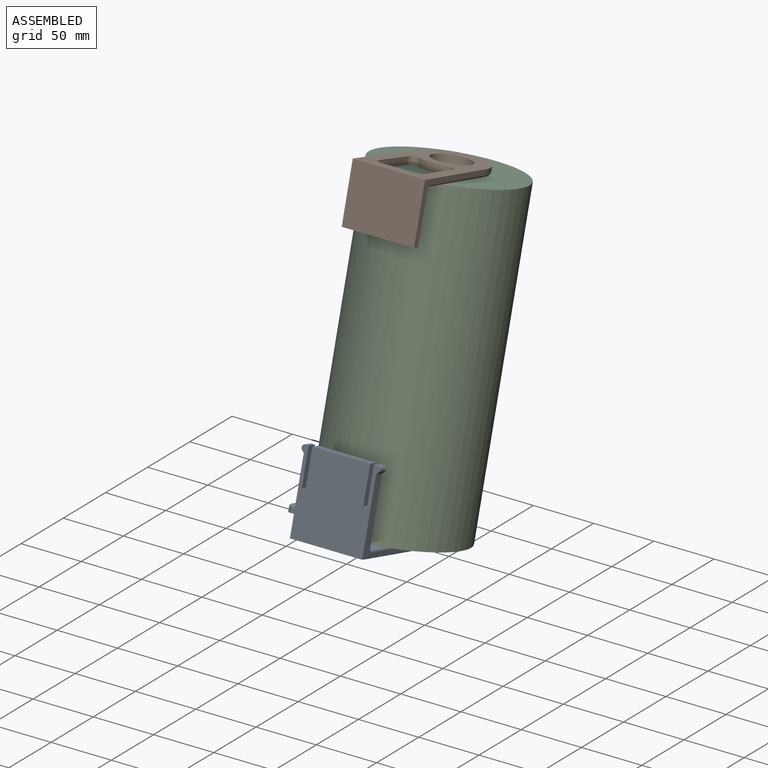
[diagram: assembled view]
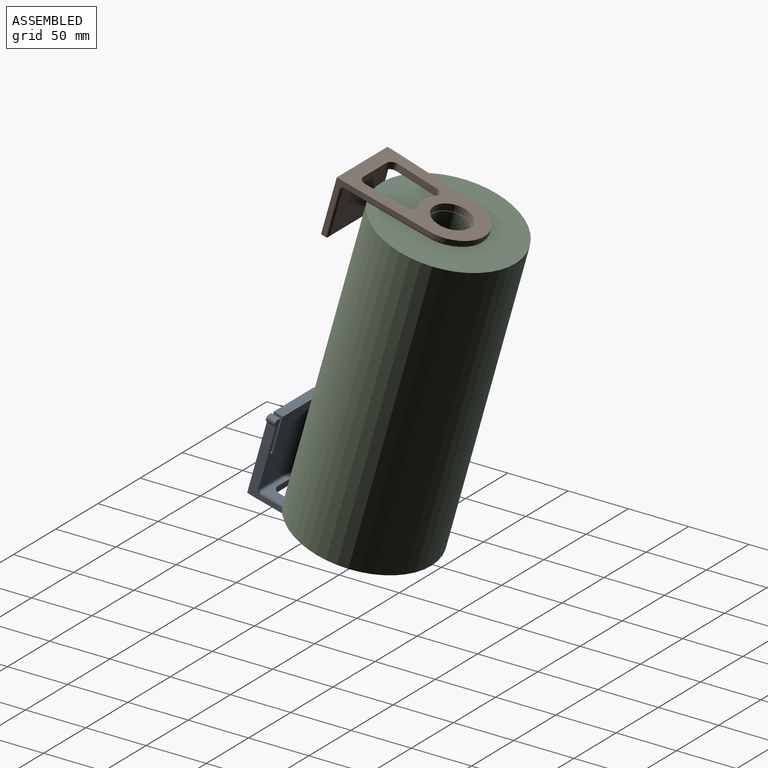
[diagram: assembled view, second angle]
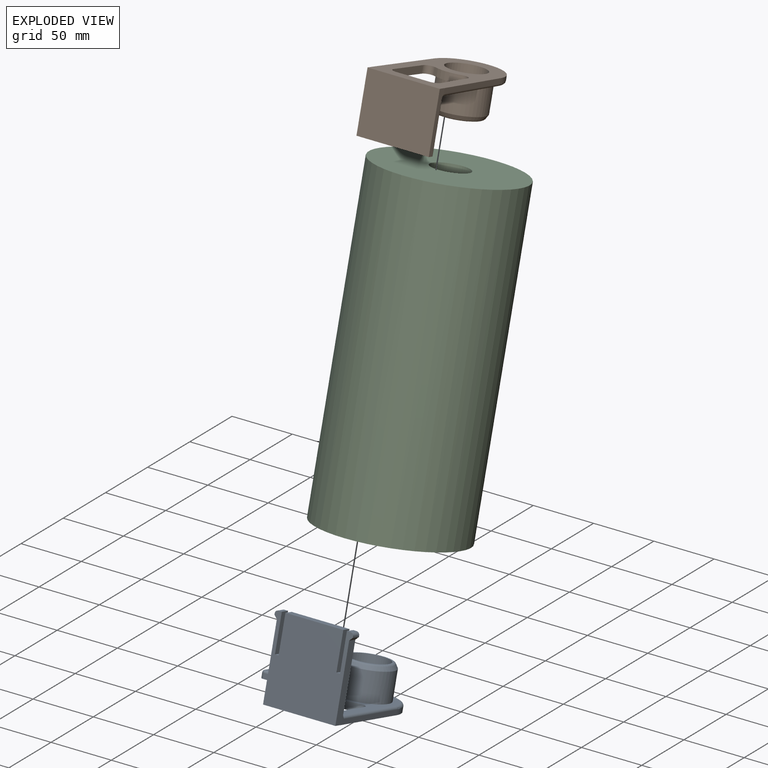
[diagram: exploded view]
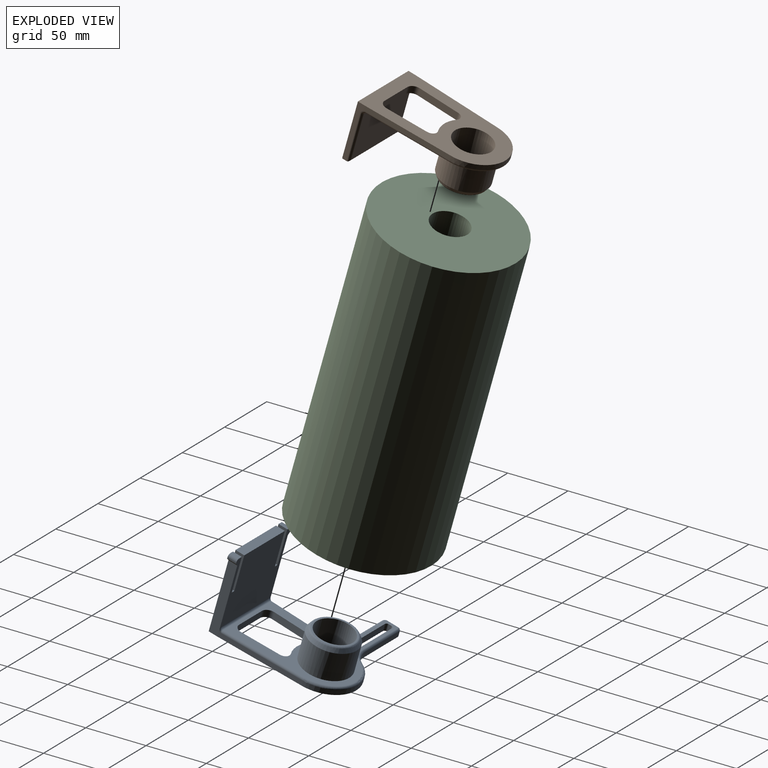
[diagram: exploded view, second angle]
ASSEMBLY  parts=3 mates=2
PART A: 66 faces, bbox 66.6x114.4x108 mm
  f0: torus R=16.54mm, axis (1,0,0), area 230.2mm2, adj f1,f18
  f1: cone r=18.27mm half-angle=30deg, axis (-1,0,0), area 416.5mm2, adj f0,f26
  f2: torus R=4mm, axis (0,0,1), area 8.5mm2, adj f25,f28,f29,f37
  f3: cylinder r=1.5mm len=7.6mm, axis (0,0,1), area 9mm2, adj f4,f29,f30,f39
  f4: plane 7.6x0.38mm, normal (0,-1,0), area 2.9mm2, adj f3,f5,f29,f39
  f5: cylinder r=2.5mm len=7.6mm, axis (0,0,1), area 29.8mm2, adj f4,f6,f29,f39
  f6: plane 7.6x3mm, normal (1,0,0), area 22.8mm2, adj f5,f7,f29,f39
  f7: plane 30x7.6mm, normal (0,1,0), area 228mm2, adj f6,f8,f29,f39
  f8: plane 7.6x3mm, normal (1,0,0), area 22.8mm2, adj f7,f9,f29,f39
  f9: plane 30x7.6mm, normal (0,-1,0), area 228mm2, adj f8,f10,f29,f39
  f10: plane 48x7.6mm, normal (1,0,0), area 364.8mm2, adj f9,f11,f29,f39
  f11: plane 30x7.6mm, normal (0,1,0), area 228mm2, adj f10,f12,f29,f39
  f12: plane 7.6x3mm, normal (1,0,0), area 22.8mm2, adj f11,f13,f29,f39
  f13: plane 30x7.6mm, normal (0,-1,0), area 228mm2, adj f12,f14,f29,f39
  f14: plane 7.6x3mm, normal (1,0,0), area 22.8mm2, adj f13,f15,f29,f39
  f15: cylinder r=2.5mm len=7.6mm, axis (0,0,1), area 29.8mm2, adj f14,f16,f29,f39
  f16: plane 7.6x1mm, normal (0,1,0), area 7.6mm2, adj f15,f17,f29,f39
  f17: plane 7.6x2.5mm, normal (-0.71,0.71,0), area 26.9mm2, adj f16,f29,f38,f39
  f18: plane 33.51x33.07mm, normal (1,0,0), area 104.3mm2, adj f0,f56
  f19: torus R=1mm, axis (-1,0,0), area 11.2mm2, adj f20,f27,f31,f58
  f20: cylinder r=2mm len=9mm, axis (0,0,1), area 28.3mm2, adj f19,f21,f32,f58
  f21: torus R=1mm, axis (-1,0,0), area 11.2mm2, adj f20,f22,f33,f58
  f22: cylinder r=2mm len=40.68mm, axis (0,-1,0), area 127.8mm2, adj f21,f23,f34,f58
  f23: torus R=17mm, axis (-1,0,0), area 50.2mm2, adj f22,f24,f35,f58
  f24: torus R=25.73mm, axis (-1,0,0), area 216.7mm2, adj f23,f25,f36,f58
  f25: cylinder r=2mm len=69.02mm, axis (0,-0.03,1), area 216.6mm2, adj f2,f24,f37,f58
  f26: cylinder r=20mm len=40mm, axis (1,0,0), area 2890.3mm2, adj f1,f58
  f27: cylinder r=2mm len=38.69mm, axis (0,1,0), area 121.5mm2, adj f19,f57,f58,f59
  f28: cylinder r=2mm len=55.87mm, axis (0,-1,0), area 175.5mm2, adj f2,f29,f58,f60
  f29: plane 65x58.57mm, normal (0,0,1), area 3321.8mm2, adj f2,f3,f4,f5,f6,f7,f8,f9
  f30: plane 7.6x2.06mm, normal (-0.71,-0.71,0), area 22.1mm2, adj f3,f29,f39,f61
  f31: cylinder r=3mm len=4mm, axis (-1,0,0), area 18.8mm2, adj f19,f32,f57,f62
  f32: plane 9x4mm, normal (0,-1,0), area 36mm2, adj f20,f31,f33,f62
  f33: cylinder r=3mm len=4mm, axis (-1,0,0), area 18.8mm2, adj f21,f32,f34,f62
  f34: plane 40.68x4mm, normal (0,0,1), area 162.7mm2, adj f22,f33,f35,f62
  f35: cylinder r=15mm len=12.75mm, axis (-1,0,0), area 61mm2, adj f23,f34,f36,f62
  f36: cylinder r=27.73mm len=51.28mm, axis (-1,0,0), area 283.3mm2, adj f24,f35,f37,f62
  f37: plane 71.53x8.07mm, normal (0,1,0.03), area 286mm2, adj f2,f25,f36,f38,f62
  f38: plane 60x7.6mm, normal (0,1,0), area 456mm2, adj f17,f29,f37,f39,f62
  f39: plane 66x65mm, normal (0,0,-1), area 3801mm2, adj f3,f4,f5,f6,f7,f8,f9,f10
  f40: cylinder r=24.83mm len=22.62mm, axis (-1,0,0), area 140.9mm2, adj f41,f47,f58,f62
  f41: cylinder r=5mm len=7.28mm, axis (-1,0,0), area 60.3mm2, adj f40,f42,f58,f62
  f42: plane 32.41x6mm, normal (0,1,-0.03), area 194.6mm2, adj f41,f43,f58,f62
  f43: cylinder r=6mm len=6.19mm, axis (-1,0,0), area 57.7mm2, adj f42,f44,f58,f62
  f44: plane 27.27x6mm, normal (0,0,1), area 163.6mm2, adj f43,f45,f58,f62
  f45: cylinder r=6mm len=6.19mm, axis (-1,0,0), area 57.7mm2, adj f44,f46,f58,f62
  f46: plane 32.41x6mm, normal (0,-1,-0.03), area 194.6mm2, adj f45,f47,f58,f62
  f47: cylinder r=5mm len=7.28mm, axis (-1,0,0), area 60.3mm2, adj f40,f46,f58,f62
  f48: plane 6x2.1mm, normal (0,1,0), area 12.6mm2, adj f49,f55,f58,f62
  f49: cylinder r=2mm len=6mm, axis (-1,0,0), area 18.8mm2, adj f48,f50,f58,f62
  f50: plane 49.38x6mm, normal (0,0,1), area 296.3mm2, adj f49,f51,f58,f62
  f51: cylinder r=2mm len=6mm, axis (-1,0,0), area 18.8mm2, adj f50,f52,f58,f62
  f52: plane 6x2.1mm, normal (0,-1,0), area 12.6mm2, adj f51,f53,f58,f62
  f53: cylinder r=2mm len=6mm, axis (-1,0,0), area 18.8mm2, adj f52,f54,f58,f62
  f54: plane 49.38x6mm, normal (0,0,-1), area 296.3mm2, adj f53,f55,f58,f62
  f55: cylinder r=2mm len=6mm, axis (-1,0,0), area 18.8mm2, adj f48,f54,f58,f62
  f56: cylinder r=15.5mm len=33mm, axis (1,0,0), area 3213.8mm2, adj f18,f62
  f57: plane 38.69x4mm, normal (0,0,-1), area 154.8mm2, adj f27,f31,f62,f63
  f58: plane 105.93x94.04mm, normal (1,0,0), area 2156.9mm2, adj f19,f20,f21,f22,f23,f24,f25,f26
  f59: torus R=12mm, axis (-1,0,0), area 54mm2, adj f27,f58,f63,f64
  f60: torus R=4mm, axis (0,0,1), area 8.5mm2, adj f28,f29,f64,f65
  f61: plane 60x7.6mm, normal (0,-1,0), area 456mm2, adj f29,f30,f39,f62,f65
  f62: plane 110x105.67mm, normal (-1,0,0), area 3866.4mm2, adj f31,f32,f33,f34,f35,f36,f37,f38
  f63: cylinder r=10mm len=10.32mm, axis (-1,0,0), area 64.1mm2, adj f57,f59,f62,f65
  f64: cylinder r=2mm len=50.31mm, axis (0,0.03,1), area 157.7mm2, adj f58,f59,f60,f65
  f65: plane 52.82x8.07mm, normal (0,-1,0.03), area 211.1mm2, adj f60,f61,f62,f63,f64
PART B: 34 faces, bbox 48.9x68.5x107.3 mm
  f0: torus R=16.54mm, axis (1,0,0), area 230.2mm2, adj f1,f2
  f1: cone r=18.27mm half-angle=30deg, axis (-1,0,0), area 416.5mm2, adj f0,f4
  f2: plane 33.51x33.07mm, normal (1,0,0), area 104.3mm2, adj f0,f20
  f3: bspline ~3.99x3.64mm, area 11mm2, adj f6,f7,f10,f21
  f4: cylinder r=20mm len=40mm, axis (1,0,0), area 2890.3mm2, adj f1,f22
  f5: cylinder r=2mm len=70.62mm, axis (0,-0.03,1), area 221.6mm2, adj f7,f21,f22,f23
  f6: cylinder r=2mm len=40mm, axis (1,0,0), area 122.5mm2, adj f3,f8,f10,f24
  f7: torus R=4mm, axis (0,0,1), area 1.7mm2, adj f3,f5,f21,f24,f25
  f8: cylinder r=2mm len=60mm, axis (0,-1,0), area 182.2mm2, adj f6,f9,f24,f26
  f9: plane 60x4mm, normal (1,0,0), area 240mm2, adj f8,f10,f11,f27
  f10: plane 48x6mm, normal (0,1,0), area 203.1mm2, adj f3,f6,f9,f11,f21,f28
  f11: plane 60x48mm, normal (0,0,-1), area 2880mm2, adj f9,f10,f27,f28
  f12: cylinder r=5mm len=7.27mm, axis (-1,0,0), area 60.3mm2, adj f13,f19,f22,f28
  f13: cylinder r=24.83mm len=22.54mm, axis (-1,0,0), area 140.4mm2, adj f12,f14,f22,f28
  f14: cylinder r=5mm len=7.27mm, axis (-1,0,0), area 60.3mm2, adj f13,f15,f22,f28
  f15: plane 33.99x6mm, normal (0,1,-0.03), area 204mm2, adj f14,f16,f22,f28
  f16: cylinder r=6mm len=6.19mm, axis (-1,0,0), area 57.7mm2, adj f15,f17,f22,f28
  f17: plane 27.27x6mm, normal (0,0,1), area 163.6mm2, adj f16,f18,f22,f28
  f18: cylinder r=6mm len=6.19mm, axis (-1,0,0), area 57.7mm2, adj f17,f19,f22,f28
  f19: plane 33.99x6mm, normal (0,-1,-0.03), area 204mm2, adj f12,f18,f22,f28
  f20: cylinder r=15.5mm len=33mm, axis (1,0,0), area 3213.8mm2, adj f2,f28
  f21: plane 73.43x5.54mm, normal (0,1,0.03), area 291mm2, adj f3,f5,f7,f10,f28,f29
  f22: plane 95.73x55.87mm, normal (1,0,0), area 1871.3mm2, adj f4,f5,f12,f13,f14,f15,f16,f17
  f23: torus R=25.67mm, axis (-1,0,0), area 260.5mm2, adj f5,f22,f29,f30
  f24: plane 56x38mm, normal (0,0,1), area 2128mm2, adj f6,f7,f8,f25,f26,f31
  f25: cylinder r=2mm len=55.87mm, axis (0,-1,0), area 175.5mm2, adj f7,f22,f24,f31
  f26: cylinder r=2mm len=40mm, axis (-1,0,0), area 122.5mm2, adj f8,f24,f27,f32
  f27: plane 48x6mm, normal (0,-1,0), area 203.1mm2, adj f9,f11,f26,f28,f32,f33
  f28: plane 105.77x60mm, normal (-1,0,0), area 3299.2mm2, adj f10,f11,f12,f13,f14,f15,f16,f17
  f29: cylinder r=27.67mm len=55.32mm, axis (-1,0,0), area 340.6mm2, adj f21,f23,f28,f33
  f30: cylinder r=2mm len=70.62mm, axis (0,0.03,1), area 221.6mm2, adj f22,f23,f31,f33
  f31: torus R=4mm, axis (0,0,1), area 1.7mm2, adj f24,f25,f30,f32,f33
  f32: bspline ~3.99x3.64mm, area 11mm2, adj f26,f27,f31,f33
  f33: plane 73.43x5.54mm, normal (0,-1,0.03), area 291mm2, adj f27,f28,f29,f30,f31,f32
PART C: 4 faces, bbox 255x115x117.1 mm
  f0: cylinder r=15mm len=255mm, axis (1,0,0), area 24033.2mm2, adj f1,f2
  f1: plane 117.13x115mm, normal (-1,0,0), area 9680mm2, adj f0,f3
  f2: plane 117.13x115mm, normal (1,0,0), area 9680mm2, adj f0,f3
  f3: cylinder r=57.5mm len=255mm, axis (1,0,0), area 92127.2mm2, adj f1,f2
PLACE A rot(axis=(-0.62,-0.62,-0.47),129.5deg) t=(-244.45,3.76,-274.04)mm
PLACE B rot(axis=(-0.62,0.62,0.47),129.5deg) t=(-244.45,78.18,-17.62)mm
PLACE C rot(axis=(0.52,-0.52,0.68),111.3deg) t=(-244.45,81.5,-289.89)mm fixed
MATE parallel A.f58 <-> C.f1  axis (0,0.27,0.96) through (-264.09,23.48,-273.41)mm
MATE parallel B.f22 <-> C.f2  axis (0,-0.27,-0.96) through (-264.09,93.08,-28.09)mm
